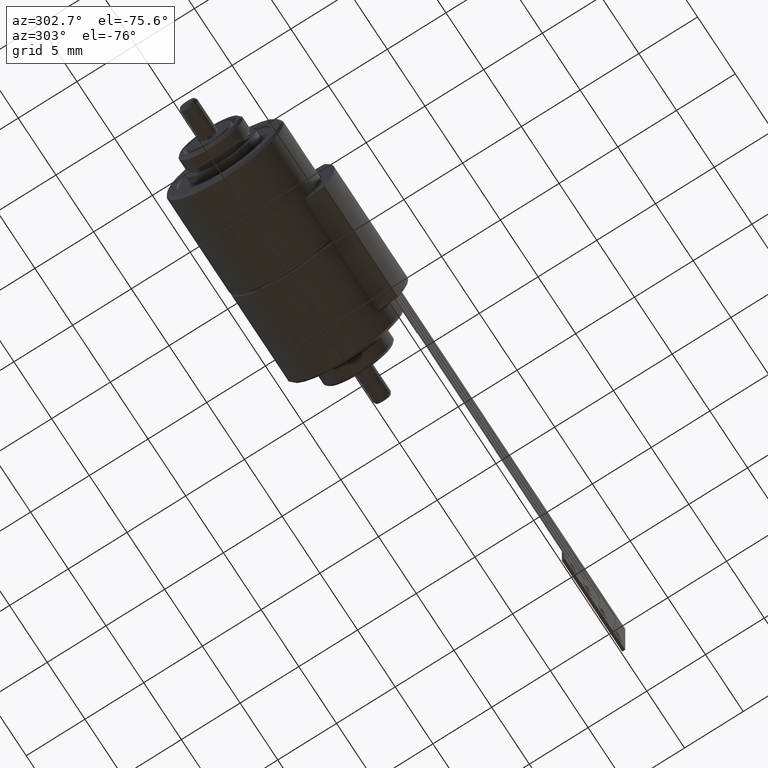
[diagram: clean part render]
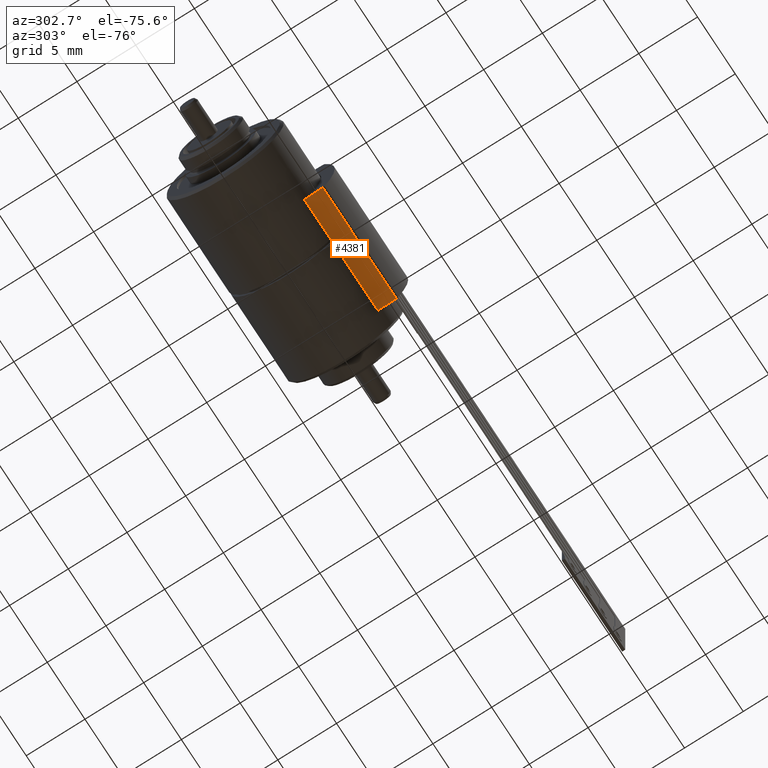
[diagram: same view with one face highlighted and labeled with its STEP entity id]
A machine part, auxiliary view. The second image highlights one B-rep face of the part: STEP entity #4381.
In plain terms, the highlighted planar face has unit normal (0, -0.0872, -0.9962).
Its self-contained STEP definition (entity closure, byte-faithful):
#3886=DIRECTION('',(0.E0,0.E0,1.E0));
#3887=VECTOR('',#3886,9.75E0);
#3888=CARTESIAN_POINT('',(3.666060555965E0,3.4E0,-7.275661554710E-14));
#3889=LINE('',#3888,#3887);
#3894=DIRECTION('',(-9.961946980918E-1,8.715574274751E-2,0.E0));
#3895=VECTOR('',#3894,1.574371084514E0);
#3896=CARTESIAN_POINT('',(5.234440683186E0,3.262784518769E0,
-5.854576083190E-14));
#3897=LINE('',#3896,#3895);
#3989=DIRECTION('',(9.961946980918E-1,-8.715574274752E-2,0.E0));
#3990=VECTOR('',#3989,1.574371084514E0);
#3991=CARTESIAN_POINT('',(3.666060555965E0,3.4E0,9.75E0));
#3992=LINE('',#3991,#3990);
#4228=DIRECTION('',(-5.657013319321E-14,0.E0,-1.E0));
#4229=VECTOR('',#4228,9.75E0);
#4230=CARTESIAN_POINT('',(5.234440683187E0,3.262784518769E0,9.75E0));
#4231=LINE('',#4230,#4229);
#4236=CARTESIAN_POINT('',(3.666060555965E0,3.4E0,-8.348877145181E-14));
#4238=VERTEX_POINT('',#4236);
#4240=CARTESIAN_POINT('',(3.666060555965E0,3.4E0,9.75E0));
#4241=VERTEX_POINT('',#4240);
#4244=CARTESIAN_POINT('',(5.234440683186E0,3.262784518769E0,
-5.854576083190E-14));
#4245=VERTEX_POINT('',#4244);
#4264=CARTESIAN_POINT('',(5.234440683187E0,3.262784518769E0,9.75E0));
#4265=VERTEX_POINT('',#4264);
#4368=CARTESIAN_POINT('',(3.666060555965E0,3.4E0,9.75E0));
#4369=DIRECTION('',(8.715574274766E-2,9.961946980917E-1,0.E0));
#4370=DIRECTION('',(-9.961946980917E-1,8.715574274766E-2,0.E0));
#4371=AXIS2_PLACEMENT_3D('',#4368,#4369,#4370);
#4372=PLANE('',#4371);
#4374=ORIENTED_EDGE('',*,*,#4373,.F.);
#4375=ORIENTED_EDGE('',*,*,#4328,.F.);
#4376=ORIENTED_EDGE('',*,*,#4342,.F.);
#4378=ORIENTED_EDGE('',*,*,#4377,.F.);
#4379=EDGE_LOOP('',(#4374,#4375,#4376,#4378));
#4380=FACE_OUTER_BOUND('',#4379,.F.);
#4381=ADVANCED_FACE('',(#4380),#4372,.T.);
#4328=EDGE_CURVE('',#4238,#4241,#3889,.T.);
#4342=EDGE_CURVE('',#4245,#4238,#3897,.T.);
#4373=EDGE_CURVE('',#4241,#4265,#3992,.T.);
#4377=EDGE_CURVE('',#4265,#4245,#4231,.T.);